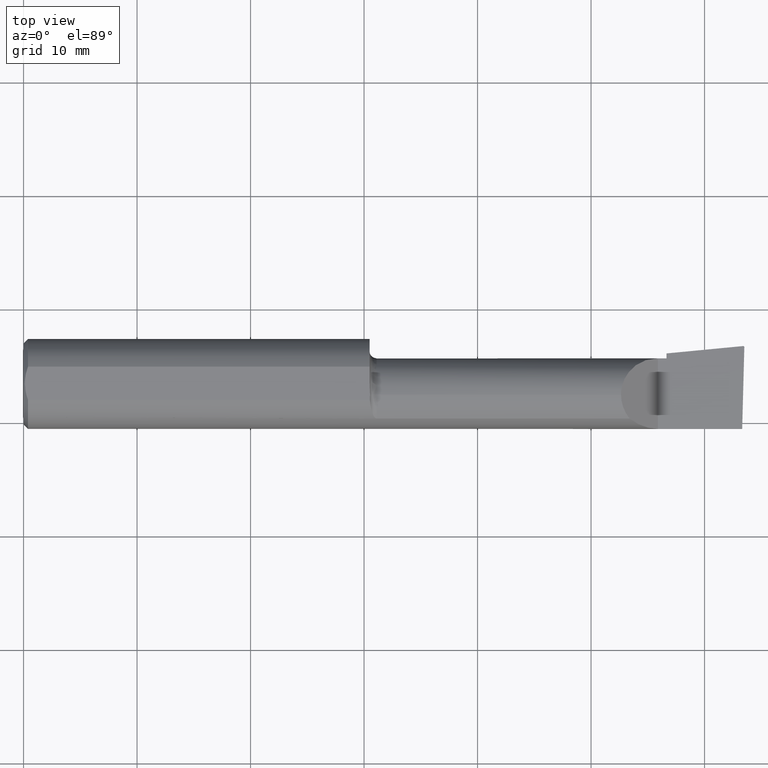
[diagram: clean part render]
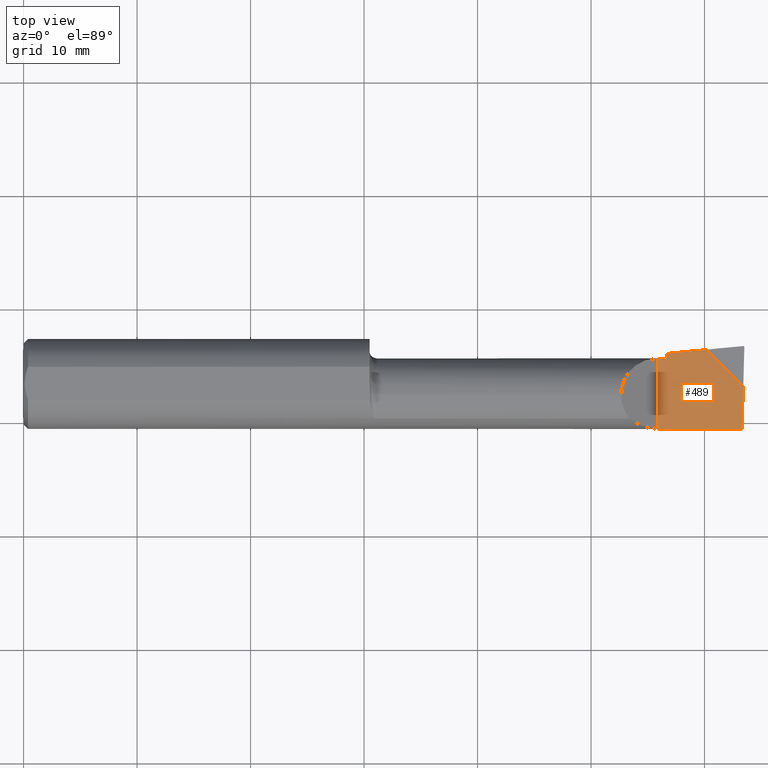
[diagram: same view with one face highlighted and labeled with its STEP entity id]
A machine part, top view. The second image highlights one B-rep face of the part: STEP entity #489.
In plain terms, the highlighted planar face has unit normal (0, 0, -1).
Its self-contained STEP definition (entity closure, byte-faithful):
#25 = AXIS2_PLACEMENT_3D ( 'NONE', #819, #1212, #634 ) ;
#41 = VERTEX_POINT ( 'NONE', #229 ) ;
#44 = DIRECTION ( 'NONE',  ( -0.000000000000000000, 1.000000000000000000, -0.000000000000000000 ) ) ;
#69 = CARTESIAN_POINT ( 'NONE',  ( 2.500926890079958387, 0.1670689702544715383, -3.414809992080329023E-17 ) ) ;
#87 = EDGE_CURVE ( 'NONE', #41, #595, #1017, .T. ) ;
#92 = CARTESIAN_POINT ( 'NONE',  ( 1.199999999999999956, 0.08890000000000002067, -3.414809992080329023E-17 ) ) ;
#109 = ORIENTED_EDGE ( 'NONE', *, *, #301, .F. ) ;
#117 = LINE ( 'NONE', #1152, #899 ) ;
#119 = LINE ( 'NONE', #92, #753 ) ;
#163 = LINE ( 'NONE', #1155, #395 ) ;
#185 = VERTEX_POINT ( 'NONE', #768 ) ;
#190 = EDGE_CURVE ( 'NONE', #196, #495, #163, .T. ) ;
#196 = VERTEX_POINT ( 'NONE', #371 ) ;
#206 = CARTESIAN_POINT ( 'NONE',  ( 2.367735612028231795, 0.1191643879717684540, 0.000000000000000000 ) ) ;
#229 = CARTESIAN_POINT ( 'NONE',  ( 2.200000000000000178, -0.1560999999999999888, -3.414809992080329023E-17 ) ) ;
#256 = DIRECTION ( 'NONE',  ( 0.02634618898890082536, 0.9996528789163572348, 0.000000000000000000 ) ) ;
#288 = DIRECTION ( 'NONE',  ( -0.9953961983671787417, -0.09584575252022461966, 0.000000000000000000 ) ) ;
#301 = EDGE_CURVE ( 'NONE', #595, #196, #119, .T. ) ;
#315 = VECTOR ( 'NONE', #256, 39.37007874015748143 ) ;
#338 = PLANE ( 'NONE',  #25 ) ;
#347 = LINE ( 'NONE', #805, #940 ) ;
#371 = CARTESIAN_POINT ( 'NONE',  ( 2.229999999999999982, 0.08890000000000002067, -3.414809992080329023E-17 ) ) ;
#395 = VECTOR ( 'NONE', #676, 39.37007874015748143 ) ;
#408 = ORIENTED_EDGE ( 'NONE', *, *, #892, .T. ) ;
#489 = ADVANCED_FACE ( 'NONE', ( #1107 ), #338, .F. ) ;
#495 = VERTEX_POINT ( 'NONE', #1197 ) ;
#505 = EDGE_CURVE ( 'NONE', #908, #185, #347, .T. ) ;
#511 = DIRECTION ( 'NONE',  ( 1.000000000000000000, 0.000000000000000000, 0.000000000000000000 ) ) ;
#515 = VECTOR ( 'NONE', #44, 39.37007874015748143 ) ;
#547 = VERTEX_POINT ( 'NONE', #1112 ) ;
#577 = LINE ( 'NONE', #988, #581 ) ;
#581 = VECTOR ( 'NONE', #288, 39.37007874015748143 ) ;
#588 = ORIENTED_EDGE ( 'NONE', *, *, #190, .F. ) ;
#595 = VERTEX_POINT ( 'NONE', #1146 ) ;
#634 = DIRECTION ( 'NONE',  ( -1.000000000000000000, 0.000000000000000000, 0.000000000000000000 ) ) ;
#646 = EDGE_CURVE ( 'NONE', #547, #185, #752, .T. ) ;
#676 = DIRECTION ( 'NONE',  ( 0.000000000000000000, 1.000000000000000000, 0.000000000000000000 ) ) ;
#752 = LINE ( 'NONE', #69, #315 ) ;
#753 = VECTOR ( 'NONE', #511, 39.37007874015748143 ) ;
#763 = ORIENTED_EDGE ( 'NONE', *, *, #646, .T. ) ;
#768 = CARTESIAN_POINT ( 'NONE',  ( 2.496276607335335740, -0.009376607335336913096, 0.000000000000000000 ) ) ;
#770 = EDGE_CURVE ( 'NONE', #547, #41, #117, .T. ) ;
#805 = CARTESIAN_POINT ( 'NONE',  ( 2.354999999999999982, 0.1319000000000000450, 0.000000000000000000 ) ) ;
#819 = CARTESIAN_POINT ( 'NONE',  ( 2.200000000000000178, 0.1749999999999999889, -3.414809992080329023E-17 ) ) ;
#892 = EDGE_CURVE ( 'NONE', #908, #495, #577, .T. ) ;
#899 = VECTOR ( 'NONE', #1085, 39.37007874015748143 ) ;
#908 = VERTEX_POINT ( 'NONE', #206 ) ;
#919 = CARTESIAN_POINT ( 'NONE',  ( 2.200000000000000178, 0.1749999999999999889, -3.414809992080329023E-17 ) ) ;
#926 = ORIENTED_EDGE ( 'NONE', *, *, #87, .F. ) ;
#940 = VECTOR ( 'NONE', #1011, 39.37007874015748854 ) ;
#948 = ORIENTED_EDGE ( 'NONE', *, *, #505, .F. ) ;
#988 = CARTESIAN_POINT ( 'NONE',  ( 2.206867856333214917, 0.1036745848902210082, -3.414809992080329023E-17 ) ) ;
#1011 = DIRECTION ( 'NONE',  ( 0.7071067811865444641, -0.7071067811865505703, 0.000000000000000000 ) ) ;
#1017 = LINE ( 'NONE', #919, #515 ) ;
#1085 = DIRECTION ( 'NONE',  ( -1.000000000000000000, -0.000000000000000000, -0.000000000000000000 ) ) ;
#1107 = FACE_OUTER_BOUND ( 'NONE', #1166, .T. ) ;
#1112 = CARTESIAN_POINT ( 'NONE',  ( 2.492409662805121773, -0.1560999999999999333, -6.829619984160658046E-17 ) ) ;
#1146 = CARTESIAN_POINT ( 'NONE',  ( 2.200000000000000178, 0.08890000000000002067, -3.414809992080329023E-17 ) ) ;
#1150 = ORIENTED_EDGE ( 'NONE', *, *, #770, .F. ) ;
#1152 = CARTESIAN_POINT ( 'NONE',  ( 2.500000000000000000, -0.1560999999999999333, -3.414809992080329023E-17 ) ) ;
#1155 = CARTESIAN_POINT ( 'NONE',  ( 2.229999999999999982, 0.1749999999999999889, -3.414809992080329023E-17 ) ) ;
#1166 = EDGE_LOOP ( 'NONE', ( #763, #948, #408, #588, #109, #926, #1150 ) ) ;
#1197 = CARTESIAN_POINT ( 'NONE',  ( 2.229999999999999982, 0.1059019569866644639, -3.414809992080329023E-17 ) ) ;
#1212 = DIRECTION ( 'NONE',  ( -0.000000000000000000, 0.000000000000000000, -1.000000000000000000 ) ) ;